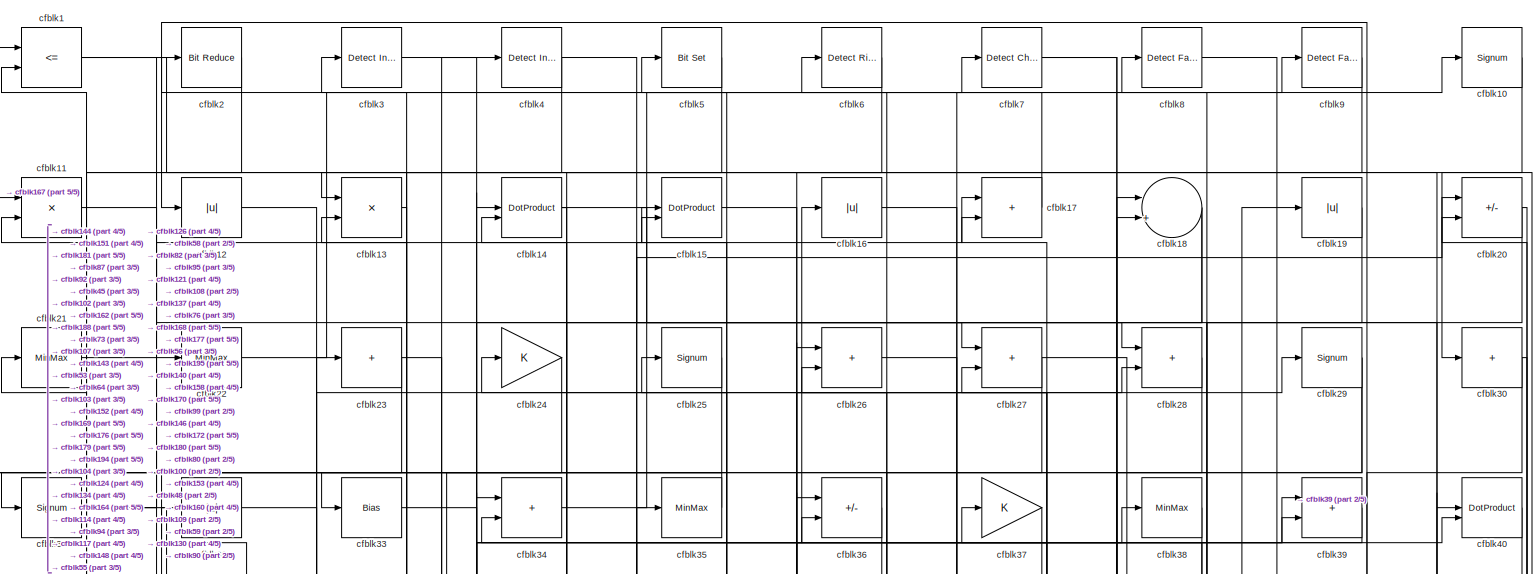
[diagram: root canvas - part 1/5, full width, top band]
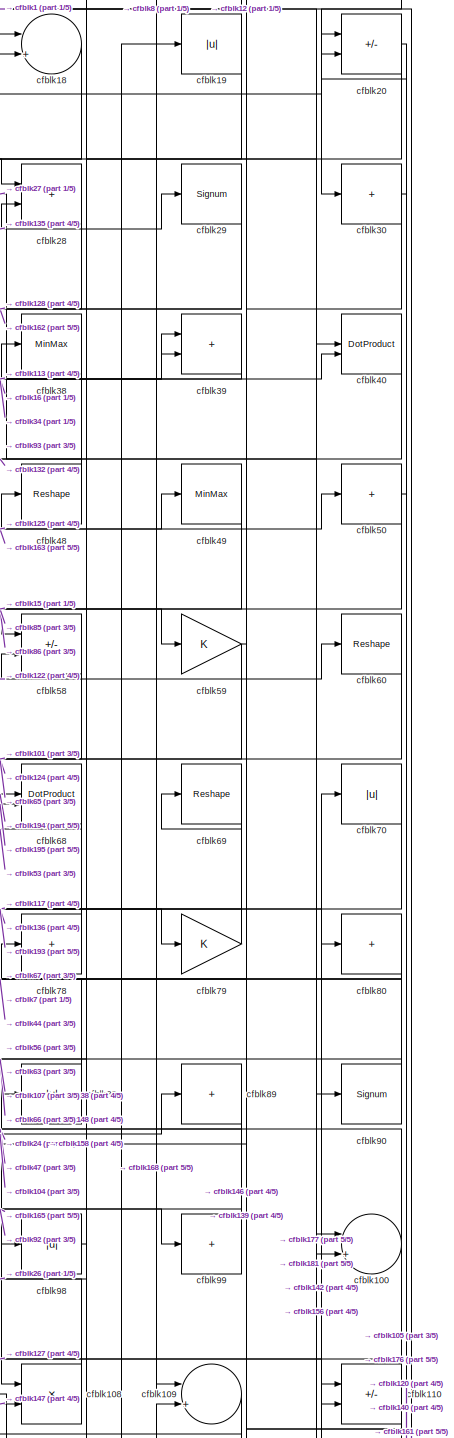
[diagram: root canvas - part 2/5, top right region]
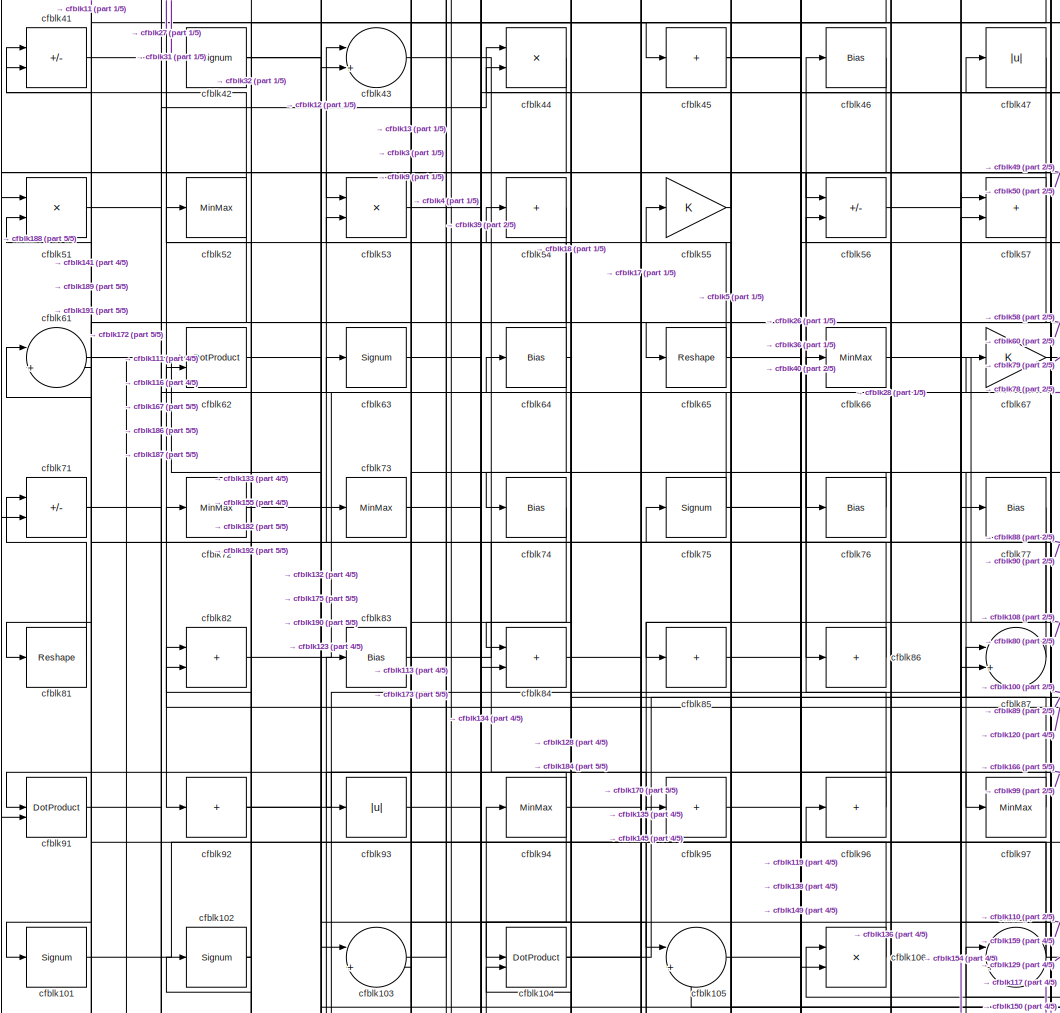
[diagram: root canvas - part 3/5, central region]
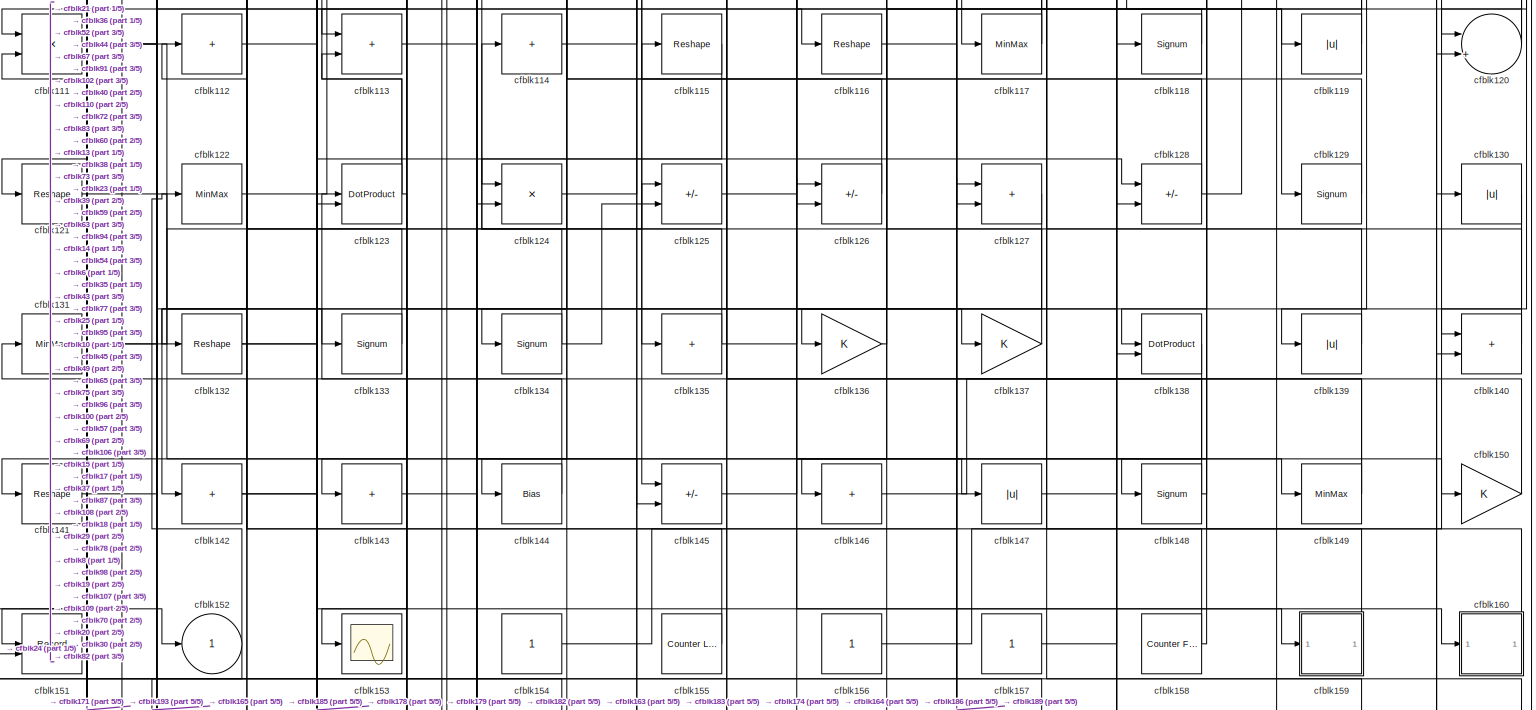
[diagram: root canvas - part 4/5, full width, bottom band]
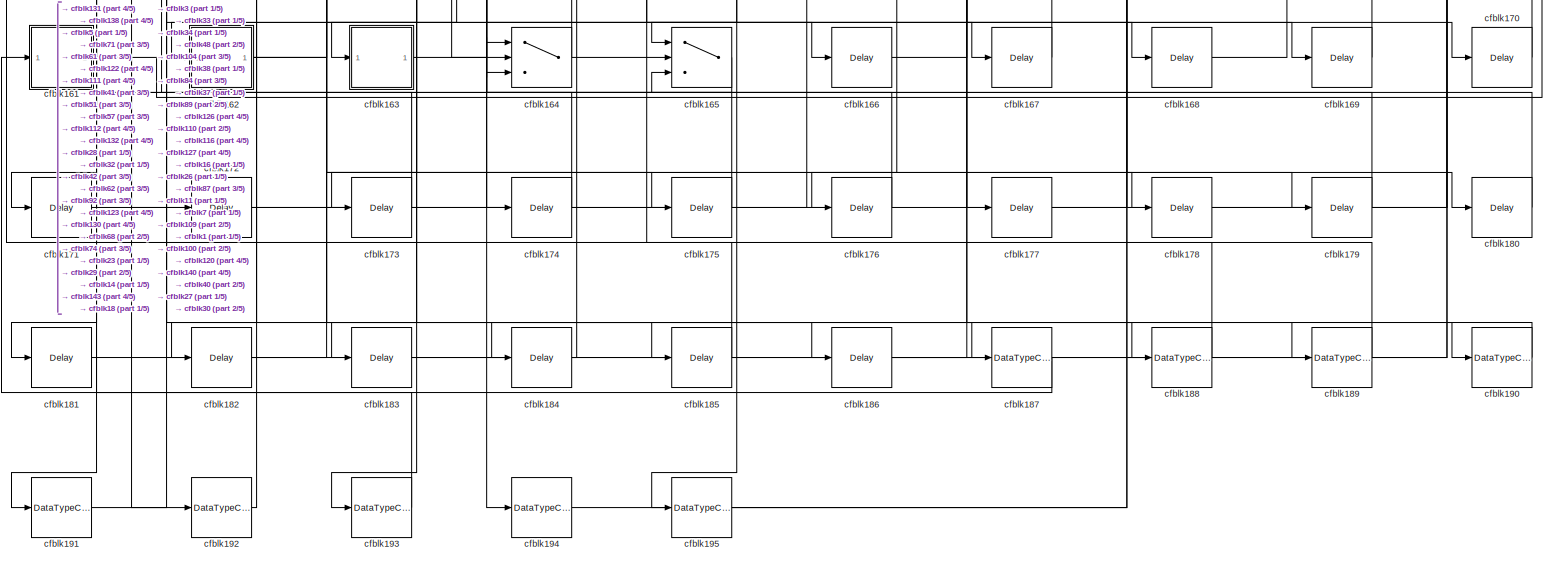
[diagram: root canvas - part 5/5, full width, bottom band]
MODEL slx_77cde8cacdb6
KIND model
CONFIG AbsTol = auto
CONFIG EnableMultiTasking = off
CONFIG FixedStep = auto
CONFIG MaxStep = auto
CONFIG MinStep = auto
CONFIG RelTol = 1e-3
CONFIG SampleTimeConstraint = Unconstrained
CONFIG SolverName = VariableStepAuto
CONFIG StartTime = 0.0
CONFIG StopTime = 10.0
BLOCK [RelationalOperator] cfblk1
  InputSameDT = off
  Operator = <=
  OutDataTypeStr = boolean
BLOCK [Signum] cfblk10
BLOCK [Sum] cfblk100
  Inputs = |++
BLOCK [Signum] cfblk101
BLOCK [Signum] cfblk102
BLOCK [Sum] cfblk103
  Inputs = |++
BLOCK [DotProduct] cfblk104
  OutDataTypeStr = Inherit: Inherit via internal rule
BLOCK [Sum] cfblk105
  Inputs = |++
BLOCK [Product] cfblk106
  Inputs = */
  RndMeth = Zero
  SaturateOnIntegerOverflow = on
BLOCK [Sum] cfblk107
  Inputs = |++
BLOCK [Product] cfblk108
  Inputs = */
  RndMeth = Zero
  SaturateOnIntegerOverflow = on
BLOCK [Sum] cfblk109
  Inputs = |++
BLOCK [Product] cfblk11
  Inputs = */
  RndMeth = Zero
  SaturateOnIntegerOverflow = on
BLOCK [Sum] cfblk110
  IconShape = rectangular
  Inputs = +-
BLOCK [Product] cfblk111
  Inputs = */
  RndMeth = Zero
  SaturateOnIntegerOverflow = on
BLOCK [Sum] cfblk112
  IconShape = rectangular
  Inputs = +
BLOCK [Sum] cfblk113
  IconShape = rectangular
BLOCK [Sum] cfblk114
  IconShape = rectangular
  Inputs = +
BLOCK [Reshape] cfblk115
BLOCK [Reshape] cfblk116
BLOCK [MinMax] cfblk117
BLOCK [Signum] cfblk118
BLOCK [Abs] cfblk119
  SaturateOnIntegerOverflow = off
BLOCK [Abs] cfblk12
  SaturateOnIntegerOverflow = off
BLOCK [Sum] cfblk120
  Inputs = |++
BLOCK [Reshape] cfblk121
BLOCK [MinMax] cfblk122
BLOCK [DotProduct] cfblk123
  OutDataTypeStr = Inherit: Inherit via internal rule
BLOCK [Product] cfblk124
  Inputs = */
  RndMeth = Zero
  SaturateOnIntegerOverflow = on
BLOCK [Sum] cfblk125
  IconShape = rectangular
  Inputs = +-
BLOCK [Sum] cfblk126
  IconShape = rectangular
  Inputs = +-
BLOCK [Sum] cfblk127
  IconShape = rectangular
BLOCK [Sum] cfblk128
  IconShape = rectangular
  Inputs = +-
BLOCK [Signum] cfblk129
BLOCK [Product] cfblk13
  Inputs = */
  RndMeth = Zero
  SaturateOnIntegerOverflow = on
BLOCK [Abs] cfblk130
  SaturateOnIntegerOverflow = off
BLOCK [MinMax] cfblk131
BLOCK [Reshape] cfblk132
BLOCK [Signum] cfblk133
BLOCK [Signum] cfblk134
BLOCK [Sum] cfblk135
  IconShape = rectangular
  Inputs = +
BLOCK [Gain] cfblk136
BLOCK [Gain] cfblk137
BLOCK [DotProduct] cfblk138
  OutDataTypeStr = Inherit: Inherit via internal rule
BLOCK [Abs] cfblk139
  SaturateOnIntegerOverflow = off
BLOCK [DotProduct] cfblk14
  OutDataTypeStr = Inherit: Inherit via internal rule
BLOCK [Sum] cfblk140
  IconShape = rectangular
BLOCK [Reshape] cfblk141
BLOCK [Sum] cfblk142
  IconShape = rectangular
  Inputs = +
BLOCK [Sum] cfblk143
  IconShape = rectangular
  Inputs = +
BLOCK [Bias] cfblk144
  Bias = 0.0
  SaturateOnIntegerOverflow = off
BLOCK [Sum] cfblk145
  IconShape = rectangular
  Inputs = +-
BLOCK [Sum] cfblk146
  IconShape = rectangular
  Inputs = +
BLOCK [Abs] cfblk147
  SaturateOnIntegerOverflow = off
BLOCK [Signum] cfblk148
BLOCK [MinMax] cfblk149
BLOCK [DotProduct] cfblk15
  OutDataTypeStr = Inherit: Inherit via internal rule
BLOCK [Gain] cfblk150
BLOCK [Record] cfblk151
  CompatibilityTag = XY
  FileSettingsInternal = {"entries":[{"content":{"excelSettings":{"content":{},"type":"Streamout.ExcelSettings"}},"type":"Streamout.FileSettingStorage","uuid":""}],"packageUris":["http:\/\/schema.mathworks.com\/mf0\/streamout_blocks\/R2020a"],"version":"1.0"}
  Layout = [1 1]
  SignalsInternal = {"entries":[{"content":{"signals":[{"content":{"blockPath":[],"dimensions":[1],"domain":"","lineColor":"#a2142f","plots":[1],"port":1,"signalID":2314,"signalName":"XY Graph:1"},"type":"RecordBlkView.Signal","uuid":""},{"content":{"blockPath":[],"dimensions":[1],"domain":"","lineColor":"#139fff","plots":[1],"port":2,"signalID":2317,"signalName":"XY Graph:2"},"type":"RecordBlkView.Signal","uuid":""}...<+146ch>
  VisualizationBindings = {"xyplotplugin":{"info":[{"series":[{"bindingParametersList":[{"parameter":"X-Axis","signalID":2314,"signalName":"XY Graph:1"},{"parameter":"Y-Axis","signalID":2317,"signalName":"XY Graph:2"}],"seriesID":15744}],"subplotID":1}]}}
  st = -1
BLOCK [Outport] cfblk152
  VectorParamsAs1DForOutWhenUnconnected = off
BLOCK [Scope] cfblk153
  Floating = off
  NumInputPorts = 1
  ScopeSpecificationString = Simulink.scopes.TimeScopeBlockCfg('CurrentConfiguration', extmgr.ConfigurationSet(extmgr.Configuration('Core','General UI',true),extmgr.Configuration('Core','Source UI',true),extmgr.Configuration('Sources','WiredSimulink',true,'DataLoggingVariableName','ScopeData2','DataLoggingSaveFormat','Array','DataLoggingLimitDataPoints',true,'DataLoggingDecimation','1'),extmgr.Configuration('Visuals','Time Do...<+868ch>
BLOCK [Constant] cfblk154
  SampleTime = -1
BLOCK [Reference] cfblk155  REF=hdlsllib/Sources/Counter
Limited
  SourceBlock = hdlsllib/Sources/Counter\nLimited
  SourceType = Counter Limited
BLOCK [Constant] cfblk156
  SampleTime = -1
BLOCK [Constant] cfblk157
  SampleTime = -1
BLOCK [Reference] cfblk158  REF=hdlsllib/Sources/Counter
Free-Running
  SourceBlock = hdlsllib/Sources/Counter\nFree-Running
  SourceType = Counter Free-Running
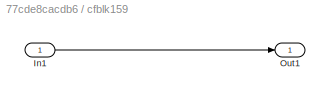
BLOCK [SubSystem] cfblk159
  LibrarySourceBlock = hdlsllib/Ports &\nSubsystems/Subsystem
BLOCK [Inport] cfblk159/In1
BLOCK [Outport] cfblk159/Out1
BLOCK [Abs] cfblk16
  SaturateOnIntegerOverflow = off
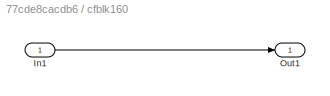
BLOCK [SubSystem] cfblk160
  LibrarySourceBlock = hdlsllib/Ports &\nSubsystems/Subsystem
BLOCK [Inport] cfblk160/In1
BLOCK [Outport] cfblk160/Out1
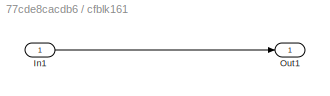
BLOCK [SubSystem] cfblk161
  LibrarySourceBlock = hdlsllib/Ports &\nSubsystems/Subsystem
BLOCK [Inport] cfblk161/In1
BLOCK [Outport] cfblk161/Out1
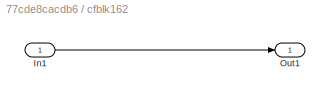
BLOCK [SubSystem] cfblk162
  LibrarySourceBlock = hdlsllib/Ports &\nSubsystems/Subsystem
BLOCK [Inport] cfblk162/In1
BLOCK [Outport] cfblk162/Out1
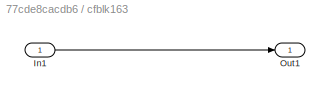
BLOCK [SubSystem] cfblk163
  LibrarySourceBlock = hdlsllib/Ports &\nSubsystems/Subsystem
BLOCK [Inport] cfblk163/In1
BLOCK [Outport] cfblk163/Out1
BLOCK [Switch] cfblk164
  InputSameDT = off
  SaturateOnIntegerOverflow = off
BLOCK [Switch] cfblk165
  InputSameDT = off
  SaturateOnIntegerOverflow = off
BLOCK [Delay] cfblk166
  InputPortMap = u0
  SampleTime = 1
BLOCK [Delay] cfblk167
  InputPortMap = u0
  SampleTime = 1
BLOCK [Delay] cfblk168
  InputPortMap = u0
  SampleTime = 1
BLOCK [Delay] cfblk169
  InputPortMap = u0
  SampleTime = 1
BLOCK [Sum] cfblk17
  IconShape = rectangular
BLOCK [Delay] cfblk170
  InputPortMap = u0
  SampleTime = 1
BLOCK [Delay] cfblk171
  InputPortMap = u0
  SampleTime = 1
BLOCK [Delay] cfblk172
  InputPortMap = u0
  SampleTime = 1
BLOCK [Delay] cfblk173
  InputPortMap = u0
  SampleTime = 1
BLOCK [Delay] cfblk174
  InputPortMap = u0
  SampleTime = 1
BLOCK [Delay] cfblk175
  InputPortMap = u0
  SampleTime = 1
BLOCK [Delay] cfblk176
  InputPortMap = u0
  SampleTime = 1
BLOCK [Delay] cfblk177
  InputPortMap = u0
  SampleTime = 1
BLOCK [Delay] cfblk178
  InputPortMap = u0
  SampleTime = 1
BLOCK [Delay] cfblk179
  InputPortMap = u0
  SampleTime = 1
BLOCK [Sum] cfblk18
  Inputs = |++
BLOCK [Delay] cfblk180
  InputPortMap = u0
  SampleTime = 1
BLOCK [Delay] cfblk181
  InputPortMap = u0
  SampleTime = 1
BLOCK [Delay] cfblk182
  InputPortMap = u0
  SampleTime = 1
BLOCK [Delay] cfblk183
  InputPortMap = u0
  SampleTime = 1
BLOCK [Delay] cfblk184
  InputPortMap = u0
  SampleTime = 1
BLOCK [Delay] cfblk185
  InputPortMap = u0
  SampleTime = 1
BLOCK [Delay] cfblk186
  InputPortMap = u0
  SampleTime = 1
BLOCK [DataTypeConversion] cfblk187
  OutDataTypeStr = uint8
  RndMeth = Floor
  SaturateOnIntegerOverflow = off
BLOCK [DataTypeConversion] cfblk188
  OutDataTypeStr = uint8
  RndMeth = Floor
  SaturateOnIntegerOverflow = off
BLOCK [DataTypeConversion] cfblk189
  OutDataTypeStr = uint8
  RndMeth = Floor
  SaturateOnIntegerOverflow = off
BLOCK [Abs] cfblk19
  SaturateOnIntegerOverflow = off
BLOCK [DataTypeConversion] cfblk190
  OutDataTypeStr = uint8
  RndMeth = Floor
  SaturateOnIntegerOverflow = off
BLOCK [DataTypeConversion] cfblk191
  OutDataTypeStr = uint8
  RndMeth = Floor
  SaturateOnIntegerOverflow = off
BLOCK [DataTypeConversion] cfblk192
  OutDataTypeStr = uint8
  RndMeth = Floor
  SaturateOnIntegerOverflow = off
BLOCK [DataTypeConversion] cfblk193
  OutDataTypeStr = uint8
  RndMeth = Floor
  SaturateOnIntegerOverflow = off
BLOCK [DataTypeConversion] cfblk194
  OutDataTypeStr = uint8
  RndMeth = Floor
  SaturateOnIntegerOverflow = off
BLOCK [DataTypeConversion] cfblk195
  OutDataTypeStr = uint8
  RndMeth = Floor
  SaturateOnIntegerOverflow = off
BLOCK [Reference] cfblk2  REF=hdlsllib/Logic and Bit
Operations/Bit Reduce
  SourceBlock = hdlsllib/Logic and Bit\nOperations/Bit Reduce
  SourceType = Bit Reduce
BLOCK [Sum] cfblk20
  IconShape = rectangular
  Inputs = +-
BLOCK [MinMax] cfblk21
BLOCK [MinMax] cfblk22
BLOCK [Sum] cfblk23
  IconShape = rectangular
  Inputs = +
BLOCK [Gain] cfblk24
BLOCK [Signum] cfblk25
BLOCK [Sum] cfblk26
  IconShape = rectangular
BLOCK [Sum] cfblk27
  IconShape = rectangular
BLOCK [Sum] cfblk28
  IconShape = rectangular
BLOCK [Signum] cfblk29
BLOCK [Reference] cfblk3  REF=simulink/Logic and Bit
Operations/Detect
Increase
  LibrarySourceBlock = hdlsllib/Logic and Bit\nOperations/Detect\nIncrease
  SourceBlock = simulink/Logic and Bit\nOperations/Detect\nIncrease
  SourceType = Detect Increase
BLOCK [Sum] cfblk30
  IconShape = rectangular
  Inputs = +
BLOCK [Signum] cfblk31
BLOCK [Abs] cfblk32
  SaturateOnIntegerOverflow = off
BLOCK [Bias] cfblk33
  Bias = 0.0
  SaturateOnIntegerOverflow = off
BLOCK [Sum] cfblk34
  IconShape = rectangular
BLOCK [MinMax] cfblk35
BLOCK [Sum] cfblk36
  IconShape = rectangular
  Inputs = +-
BLOCK [Gain] cfblk37
BLOCK [MinMax] cfblk38
BLOCK [Sum] cfblk39
  IconShape = rectangular
BLOCK [Reference] cfblk4  REF=simulink/Logic and Bit
Operations/Detect
Increase
  LibrarySourceBlock = hdlsllib/Logic and Bit\nOperations/Detect\nIncrease
  SourceBlock = simulink/Logic and Bit\nOperations/Detect\nIncrease
  SourceType = Detect Increase
BLOCK [DotProduct] cfblk40
  OutDataTypeStr = Inherit: Inherit via internal rule
BLOCK [Sum] cfblk41
  IconShape = rectangular
  Inputs = +-
BLOCK [Signum] cfblk42
BLOCK [Sum] cfblk43
  Inputs = |++
BLOCK [Product] cfblk44
  Inputs = */
  RndMeth = Zero
  SaturateOnIntegerOverflow = on
BLOCK [Sum] cfblk45
  IconShape = rectangular
  Inputs = +
BLOCK [Bias] cfblk46
  Bias = 0.0
  SaturateOnIntegerOverflow = off
BLOCK [Abs] cfblk47
  SaturateOnIntegerOverflow = off
BLOCK [Reshape] cfblk48
BLOCK [MinMax] cfblk49
BLOCK [Reference] cfblk5  REF=simulink/Logic and Bit
Operations/Bit Set
  LibrarySourceBlock = hdlsllib/Logic and Bit\nOperations/Bit Set
  SourceBlock = simulink/Logic and Bit\nOperations/Bit Set
  SourceType = Bit Set
BLOCK [Sum] cfblk50
  IconShape = rectangular
  Inputs = +
BLOCK [Product] cfblk51
  Inputs = */
  RndMeth = Zero
  SaturateOnIntegerOverflow = on
BLOCK [MinMax] cfblk52
BLOCK [Product] cfblk53
  Inputs = */
  RndMeth = Zero
  SaturateOnIntegerOverflow = on
BLOCK [Sum] cfblk54
  IconShape = rectangular
  Inputs = +
BLOCK [Gain] cfblk55
BLOCK [Sum] cfblk56
  IconShape = rectangular
  Inputs = +-
BLOCK [Sum] cfblk57
  IconShape = rectangular
BLOCK [Sum] cfblk58
  IconShape = rectangular
  Inputs = +-
BLOCK [Gain] cfblk59
BLOCK [Reference] cfblk6  REF=hdlsllib/Logic and Bit
Operations/Detect Rise
Nonnegative
  SourceBlock = hdlsllib/Logic and Bit\nOperations/Detect Rise\nNonnegative
  SourceType = Detect Rise Nonnegative
BLOCK [Reshape] cfblk60
BLOCK [Sum] cfblk61
  Inputs = |++
BLOCK [DotProduct] cfblk62
  OutDataTypeStr = Inherit: Inherit via internal rule
BLOCK [Signum] cfblk63
BLOCK [Bias] cfblk64
  Bias = 0.0
  SaturateOnIntegerOverflow = off
BLOCK [Reshape] cfblk65
BLOCK [MinMax] cfblk66
BLOCK [Gain] cfblk67
BLOCK [DotProduct] cfblk68
  OutDataTypeStr = Inherit: Inherit via internal rule
BLOCK [Reshape] cfblk69
BLOCK [Reference] cfblk7  REF=simulink/Logic and Bit
Operations/Detect
Change
  LibrarySourceBlock = hdlsllib/Logic and Bit\nOperations/Detect\nChange
  SourceBlock = simulink/Logic and Bit\nOperations/Detect\nChange
  SourceType = Detect Change
BLOCK [Abs] cfblk70
  SaturateOnIntegerOverflow = off
BLOCK [Sum] cfblk71
  IconShape = rectangular
  Inputs = +-
BLOCK [MinMax] cfblk72
BLOCK [MinMax] cfblk73
BLOCK [Bias] cfblk74
  Bias = 0.0
  SaturateOnIntegerOverflow = off
BLOCK [Signum] cfblk75
BLOCK [Bias] cfblk76
  Bias = 0.0
  SaturateOnIntegerOverflow = off
BLOCK [Bias] cfblk77
  Bias = 0.0
  SaturateOnIntegerOverflow = off
BLOCK [Sum] cfblk78
  IconShape = rectangular
  Inputs = +
BLOCK [Gain] cfblk79
BLOCK [Reference] cfblk8  REF=hdlsllib/Logic and Bit
Operations/Detect Fall
Nonpositive
  SourceBlock = hdlsllib/Logic and Bit\nOperations/Detect Fall\nNonpositive
  SourceType = Detect Fall Nonpositive
BLOCK [Sum] cfblk80
  IconShape = rectangular
  Inputs = +
BLOCK [Reshape] cfblk81
BLOCK [Sum] cfblk82
  IconShape = rectangular
BLOCK [Bias] cfblk83
  Bias = 0.0
  SaturateOnIntegerOverflow = off
BLOCK [Sum] cfblk84
  IconShape = rectangular
BLOCK [Sum] cfblk85
  IconShape = rectangular
  Inputs = +
BLOCK [Sum] cfblk86
  IconShape = rectangular
  Inputs = +
BLOCK [Sum] cfblk87
  Inputs = |++
BLOCK [Abs] cfblk88
  SaturateOnIntegerOverflow = off
BLOCK [Sum] cfblk89
  IconShape = rectangular
  Inputs = +
BLOCK [Reference] cfblk9  REF=hdlsllib/Logic and Bit
Operations/Detect Fall
Negative
  SourceBlock = hdlsllib/Logic and Bit\nOperations/Detect Fall\nNegative
  SourceType = Detect Fall Negative
BLOCK [Signum] cfblk90
BLOCK [DotProduct] cfblk91
  OutDataTypeStr = Inherit: Inherit via internal rule
BLOCK [Sum] cfblk92
  IconShape = rectangular
  Inputs = +
BLOCK [Abs] cfblk93
  SaturateOnIntegerOverflow = off
BLOCK [MinMax] cfblk94
BLOCK [Sum] cfblk95
  IconShape = rectangular
  Inputs = +
BLOCK [Sum] cfblk96
  IconShape = rectangular
  Inputs = +
BLOCK [MinMax] cfblk97
BLOCK [Abs] cfblk98
  SaturateOnIntegerOverflow = off
BLOCK [Sum] cfblk99
  IconShape = rectangular
  Inputs = +
NET cfblk100:1 -> cfblk127:2, cfblk47:1
LINE cfblk101:1 -> cfblk77:1
NET cfblk102:1 -> cfblk32:1, cfblk72:1
LINE cfblk103:1 -> cfblk4:1
NET cfblk104:1 -> cfblk50:1, cfblk89:1
LINE cfblk105:1 -> cfblk40:2
LINE cfblk106:1 -> cfblk61:1
NET cfblk107:1 -> cfblk129:1, cfblk13:2, cfblk55:1
LINE cfblk108:1 -> cfblk26:2
LINE cfblk109:1 -> cfblk146:1
LINE cfblk10:1 -> cfblk126:2
NET cfblk110:1 -> cfblk105:2, cfblk176:1
NET cfblk111:1 -> cfblk137:1, cfblk185:1, cfblk67:1
LINE cfblk112:1 -> cfblk179:1
LINE cfblk113:1 -> cfblk39:2
LINE cfblk114:1 -> cfblk35:1
LINE cfblk115:1 -> cfblk144:1
LINE cfblk116:1 -> cfblk189:1
NET cfblk117:1 -> cfblk106:1, cfblk15:1
LINE cfblk118:1 -> cfblk111:1
LINE cfblk119:1 -> cfblk107:1
LINE cfblk11:1 -> cfblk27:1
NET cfblk120:1 -> cfblk75:1, cfblk82:1
LINE cfblk121:1 -> cfblk145:2
LINE cfblk122:1 -> cfblk60:1
NET cfblk123:1 -> cfblk113:2, cfblk183:1, cfblk83:1
LINE cfblk124:1 -> cfblk20:1
LINE cfblk125:1 -> cfblk49:1
LINE cfblk126:1 -> cfblk14:2
LINE cfblk127:1 -> cfblk142:1
NET cfblk128:1 -> cfblk19:1, cfblk54:1
LINE cfblk129:1 -> cfblk95:1
LINE cfblk12:1 -> cfblk73:1
LINE cfblk130:1 -> cfblk163:1
NET cfblk131:1 -> cfblk125:1, cfblk133:1
NET cfblk132:1 -> cfblk178:1, cfblk43:2
LINE cfblk133:1 -> cfblk52:1
NET cfblk134:1 -> cfblk125:2, cfblk94:1
NET cfblk135:1 -> cfblk29:1, cfblk82:2
LINE cfblk136:1 -> cfblk96:1
LINE cfblk137:1 -> cfblk6:1
LINE cfblk138:1 -> cfblk171:1
LINE cfblk139:1 -> cfblk114:1
LINE cfblk13:1 -> cfblk143:1
LINE cfblk140:1 -> cfblk17:1
LINE cfblk141:1 -> cfblk44:1
NET cfblk142:1 -> cfblk110:2, cfblk160:1
LINE cfblk143:1 -> cfblk174:1
LINE cfblk144:1 -> cfblk21:1
LINE cfblk145:1 -> cfblk147:1
LINE cfblk146:1 -> cfblk18:2
LINE cfblk147:1 -> cfblk108:2
NET cfblk148:1 -> cfblk25:1, cfblk78:1
NET cfblk149:1 -> cfblk115:1, cfblk123:1
NET cfblk14:1 -> cfblk124:1, cfblk130:1
LINE cfblk150:1 -> cfblk87:1
LINE cfblk154:1 -> cfblk57:1
LINE cfblk155:1 -> cfblk102:1
LINE cfblk156:1 -> cfblk70:1
LINE cfblk157:1 -> cfblk118:1
NET cfblk158:1 -> cfblk37:1, cfblk98:1
LINE cfblk159/In1:1 -> cfblk159/Out1:1
LINE cfblk159:1 -> cfblk112:1
LINE cfblk15:1 -> cfblk58:1
LINE cfblk160/In1:1 -> cfblk160/Out1:1
LINE cfblk160:1 -> cfblk8:1
LINE cfblk161/In1:1 -> cfblk161/Out1:1
NET cfblk161:1 -> cfblk192:1, cfblk30:1
LINE cfblk162/In1:1 -> cfblk162/Out1:1
NET cfblk162:1 -> cfblk23:1, cfblk28:2
LINE cfblk163/In1:1 -> cfblk163/Out1:1
LINE cfblk163:1 -> cfblk48:1
NET cfblk164:1 -> cfblk111:2, cfblk38:1
LINE cfblk165:1 -> cfblk122:1
LINE cfblk166:1 -> cfblk87:2
LINE cfblk167:1 -> cfblk11:1
LINE cfblk168:1 -> cfblk109:2
LINE cfblk169:1 -> cfblk1:1
LINE cfblk16:1 -> cfblk168:1
LINE cfblk170:1 -> cfblk27:2
LINE cfblk171:1 -> cfblk126:1
LINE cfblk172:1 -> cfblk18:1
LINE cfblk173:1 -> cfblk61:2
LINE cfblk174:1 -> cfblk164:1
LINE cfblk175:1 -> cfblk165:3
LINE cfblk176:1 -> cfblk34:1
LINE cfblk177:1 -> cfblk40:1
LINE cfblk178:1 -> cfblk140:2
LINE cfblk179:1 -> cfblk14:1
LINE cfblk17:1 -> cfblk2:1
LINE cfblk180:1 -> cfblk1:2
LINE cfblk181:1 -> cfblk100:1
LINE cfblk182:1 -> cfblk123:2
LINE cfblk183:1 -> cfblk120:2
LINE cfblk184:1 -> cfblk104:2
LINE cfblk185:1 -> cfblk165:2
LINE cfblk186:1 -> cfblk127:1
LINE cfblk187:1 -> cfblk161:1
LINE cfblk188:1 -> cfblk51:1
LINE cfblk189:1 -> cfblk51:2
NET cfblk18:1 -> cfblk104:1, cfblk164:3
LINE cfblk190:1 -> cfblk184:1
LINE cfblk191:1 -> cfblk62:1
LINE cfblk192:1 -> cfblk62:2
LINE cfblk193:1 -> cfblk131:1
LINE cfblk194:1 -> cfblk68:1
LINE cfblk195:1 -> cfblk68:2
LINE cfblk19:1 -> cfblk88:1
NET cfblk1:1 -> cfblk59:1, cfblk90:1
NET cfblk20:1 -> cfblk138:1, cfblk140:1
LINE cfblk21:1 -> cfblk22:1
LINE cfblk22:1 -> cfblk7:1
NET cfblk23:1 -> cfblk152:1, cfblk164:2
LINE cfblk24:1 -> cfblk151:2
LINE cfblk25:1 -> cfblk151:1
LINE cfblk26:1 -> cfblk177:1
NET cfblk27:1 -> cfblk100:2, cfblk92:1
LINE cfblk28:1 -> cfblk76:1
NET cfblk29:1 -> cfblk128:2, cfblk162:1
LINE cfblk2:1 -> cfblk31:1
NET cfblk30:1 -> cfblk120:1, cfblk139:1
NET cfblk31:1 -> cfblk15:2, cfblk45:1
LINE cfblk32:1 -> cfblk188:1
LINE cfblk33:1 -> cfblk194:1
LINE cfblk34:1 -> cfblk10:1
LINE cfblk35:1 -> cfblk33:1
LINE cfblk36:1 -> cfblk121:1
LINE cfblk37:1 -> cfblk195:1
LINE cfblk38:1 -> cfblk153:1
LINE cfblk39:1 -> cfblk34:2
LINE cfblk3:1 -> cfblk169:1
LINE cfblk40:1 -> cfblk132:1
LINE cfblk41:1 -> cfblk167:1
NET cfblk42:1 -> cfblk106:2, cfblk175:1
LINE cfblk43:1 -> cfblk145:1
LINE cfblk44:1 -> cfblk93:1
NET cfblk45:1 -> cfblk138:2, cfblk97:1
LINE cfblk46:1 -> cfblk71:2
LINE cfblk47:1 -> cfblk91:2
LINE cfblk48:1 -> cfblk16:1
LINE cfblk49:1 -> cfblk86:1
NET cfblk4:1 -> cfblk13:1, cfblk28:1
NET cfblk50:1 -> cfblk20:2, cfblk85:1
LINE cfblk51:1 -> cfblk187:1
NET cfblk52:1 -> cfblk141:1, cfblk41:1
LINE cfblk53:1 -> cfblk36:2
LINE cfblk54:1 -> cfblk81:1
LINE cfblk55:1 -> cfblk5:1
LINE cfblk56:1 -> cfblk9:1
NET cfblk57:1 -> cfblk182:1, cfblk56:1
LINE cfblk58:1 -> cfblk65:1
NET cfblk59:1 -> cfblk124:2, cfblk12:1
LINE cfblk5:1 -> cfblk181:1
LINE cfblk60:1 -> cfblk101:1
NET cfblk61:1 -> cfblk103:1, cfblk172:1
LINE cfblk62:1 -> cfblk190:1
LINE cfblk63:1 -> cfblk150:1
NET cfblk64:1 -> cfblk3:1, cfblk84:1, cfblk84:2
NET cfblk65:1 -> cfblk110:1, cfblk159:1, cfblk42:1
LINE cfblk66:1 -> cfblk108:1
LINE cfblk67:1 -> cfblk79:1
LINE cfblk68:1 -> cfblk193:1
LINE cfblk69:1 -> cfblk117:1
LINE cfblk6:1 -> cfblk134:1
LINE cfblk70:1 -> cfblk136:1
NET cfblk71:1 -> cfblk186:1, cfblk191:1
LINE cfblk72:1 -> cfblk128:1
NET cfblk73:1 -> cfblk105:1, cfblk113:1
LINE cfblk74:1 -> cfblk173:1
NET cfblk75:1 -> cfblk119:1, cfblk149:1, cfblk43:1
LINE cfblk76:1 -> cfblk74:1
LINE cfblk77:1 -> cfblk135:1
LINE cfblk78:1 -> cfblk53:2
LINE cfblk79:1 -> cfblk69:1
NET cfblk7:1 -> cfblk180:1, cfblk80:1
LINE cfblk80:1 -> cfblk107:2
LINE cfblk81:1 -> cfblk71:1
LINE cfblk82:1 -> cfblk36:1
LINE cfblk83:1 -> cfblk57:2
LINE cfblk84:1 -> cfblk170:1
LINE cfblk85:1 -> cfblk58:2
LINE cfblk86:1 -> cfblk41:2
LINE cfblk87:1 -> cfblk11:2
LINE cfblk88:1 -> cfblk66:1
LINE cfblk89:1 -> cfblk165:1
LINE cfblk8:1 -> cfblk109:1
NET cfblk90:1 -> cfblk44:2, cfblk56:2, cfblk63:1
LINE cfblk91:1 -> cfblk116:1
NET cfblk92:1 -> cfblk166:1, cfblk99:1
LINE cfblk93:1 -> cfblk39:1
NET cfblk94:1 -> cfblk103:2, cfblk17:2, cfblk91:1
LINE cfblk95:1 -> cfblk26:1
LINE cfblk96:1 -> cfblk46:1
LINE cfblk97:1 -> cfblk64:1
LINE cfblk98:1 -> cfblk148:1
LINE cfblk99:1 -> cfblk24:1
LINE cfblk9:1 -> cfblk53:1
note: NET lines group one-source signal fan-out (src -> all destinations, sorted); 1:1 wires keep LINE
